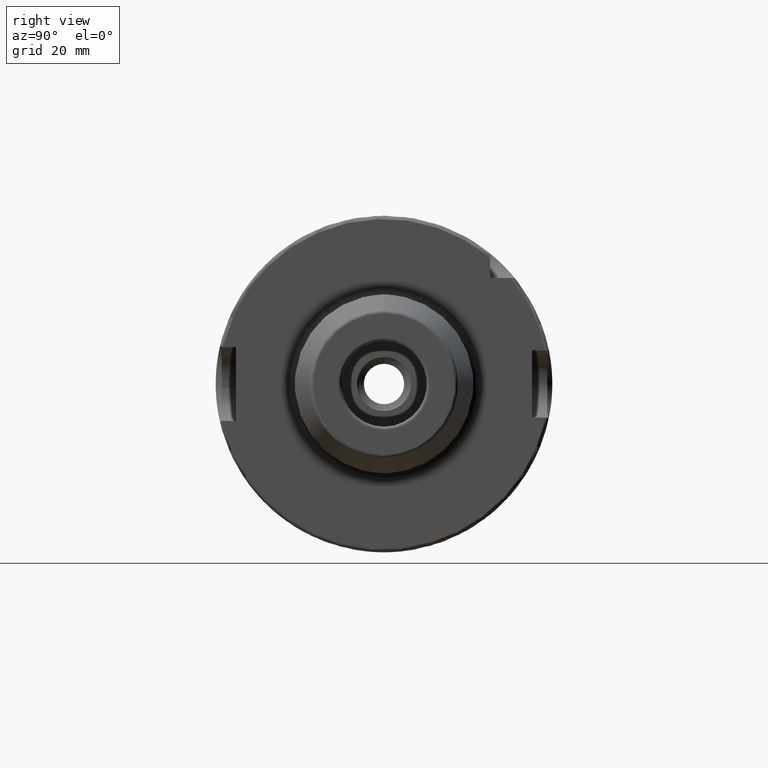
[diagram: clean part render]
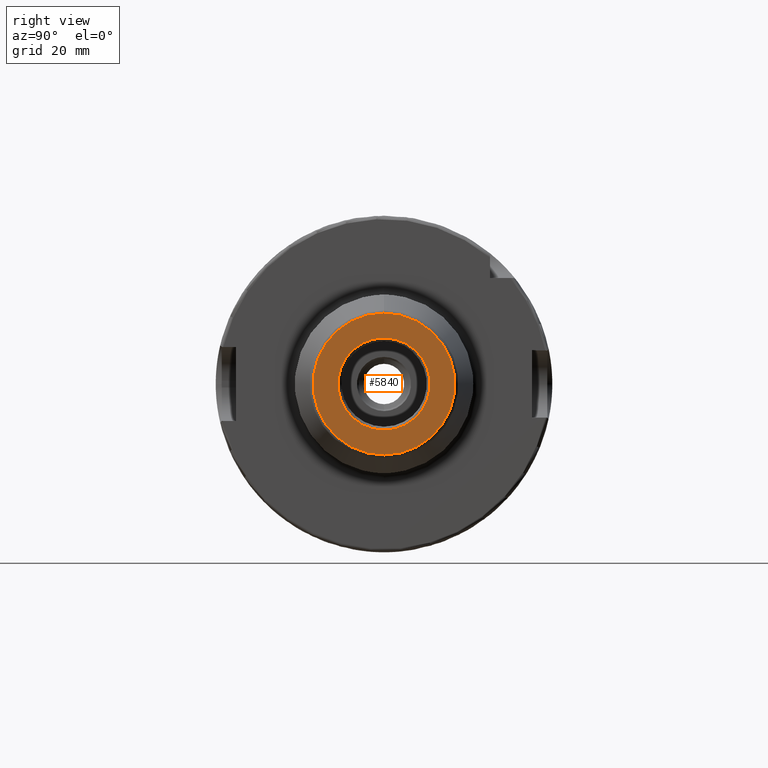
[diagram: same view with one face highlighted and labeled with its STEP entity id]
A machine part, right view. The second image highlights one B-rep face of the part: STEP entity #5840.
In plain terms, the highlighted planar face has unit normal (1, 0, 0).
Its self-contained STEP definition (entity closure, byte-faithful):
#2396=CARTESIAN_POINT('',(1.15E2,0.E0,0.E0));
#2397=DIRECTION('',(-1.E0,0.E0,0.E0));
#2398=DIRECTION('',(0.E0,0.E0,-1.E0));
#2399=AXIS2_PLACEMENT_3D('',#2396,#2397,#2398);
#2401=CARTESIAN_POINT('',(1.15E2,0.E0,0.E0));
#2402=DIRECTION('',(1.E0,0.E0,0.E0));
#2403=DIRECTION('',(0.E0,0.E0,-1.E0));
#2404=AXIS2_PLACEMENT_3D('',#2401,#2402,#2403);
#2406=CARTESIAN_POINT('',(1.15E2,0.E0,0.E0));
#2407=DIRECTION('',(-1.E0,0.E0,0.E0));
#2408=DIRECTION('',(0.E0,0.E0,-1.E0));
#2409=AXIS2_PLACEMENT_3D('',#2406,#2407,#2408);
#2411=CARTESIAN_POINT('',(1.15E2,0.E0,0.E0));
#2412=DIRECTION('',(1.E0,0.E0,0.E0));
#2413=DIRECTION('',(0.E0,0.E0,-1.E0));
#2414=AXIS2_PLACEMENT_3D('',#2411,#2412,#2413);
#3173=CARTESIAN_POINT('',(1.15E2,0.E0,-1.37E1));
#3174=VERTEX_POINT('',#3173);
#3175=CARTESIAN_POINT('',(1.15E2,0.E0,-2.107560950834E1));
#3177=VERTEX_POINT('',#3175);
#3201=CARTESIAN_POINT('',(1.15E2,0.E0,1.37E1));
#3202=VERTEX_POINT('',#3201);
#3203=CARTESIAN_POINT('',(1.15E2,0.E0,2.107560950834E1));
#3205=VERTEX_POINT('',#3203);
#5825=CARTESIAN_POINT('',(1.15E2,0.E0,0.E0));
#5826=DIRECTION('',(1.E0,0.E0,0.E0));
#5827=DIRECTION('',(0.E0,0.E0,1.E0));
#5828=AXIS2_PLACEMENT_3D('',#5825,#5826,#5827);
#5829=PLANE('',#5828);
#5830=ORIENTED_EDGE('',*,*,#5818,.F.);
#5831=ORIENTED_EDGE('',*,*,#5807,.T.);
#5832=EDGE_LOOP('',(#5830,#5831));
#5833=FACE_OUTER_BOUND('',#5832,.F.);
#5835=ORIENTED_EDGE('',*,*,#5834,.F.);
#5837=ORIENTED_EDGE('',*,*,#5836,.T.);
#5838=EDGE_LOOP('',(#5835,#5837));
#5839=FACE_BOUND('',#5838,.F.);
#5840=ADVANCED_FACE('',(#5833,#5839),#5829,.T.);
#2400=CIRCLE('',#2399,2.107560950834E1);
#2405=CIRCLE('',#2404,2.107560950834E1);
#2410=CIRCLE('',#2409,1.37E1);
#2415=CIRCLE('',#2414,1.37E1);
#5807=EDGE_CURVE('',#3177,#3205,#2400,.T.);
#5818=EDGE_CURVE('',#3177,#3205,#2405,.T.);
#5834=EDGE_CURVE('',#3174,#3202,#2410,.T.);
#5836=EDGE_CURVE('',#3174,#3202,#2415,.T.);